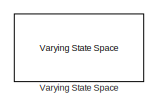
[diagram: root canvas - part 1/3, top center region]
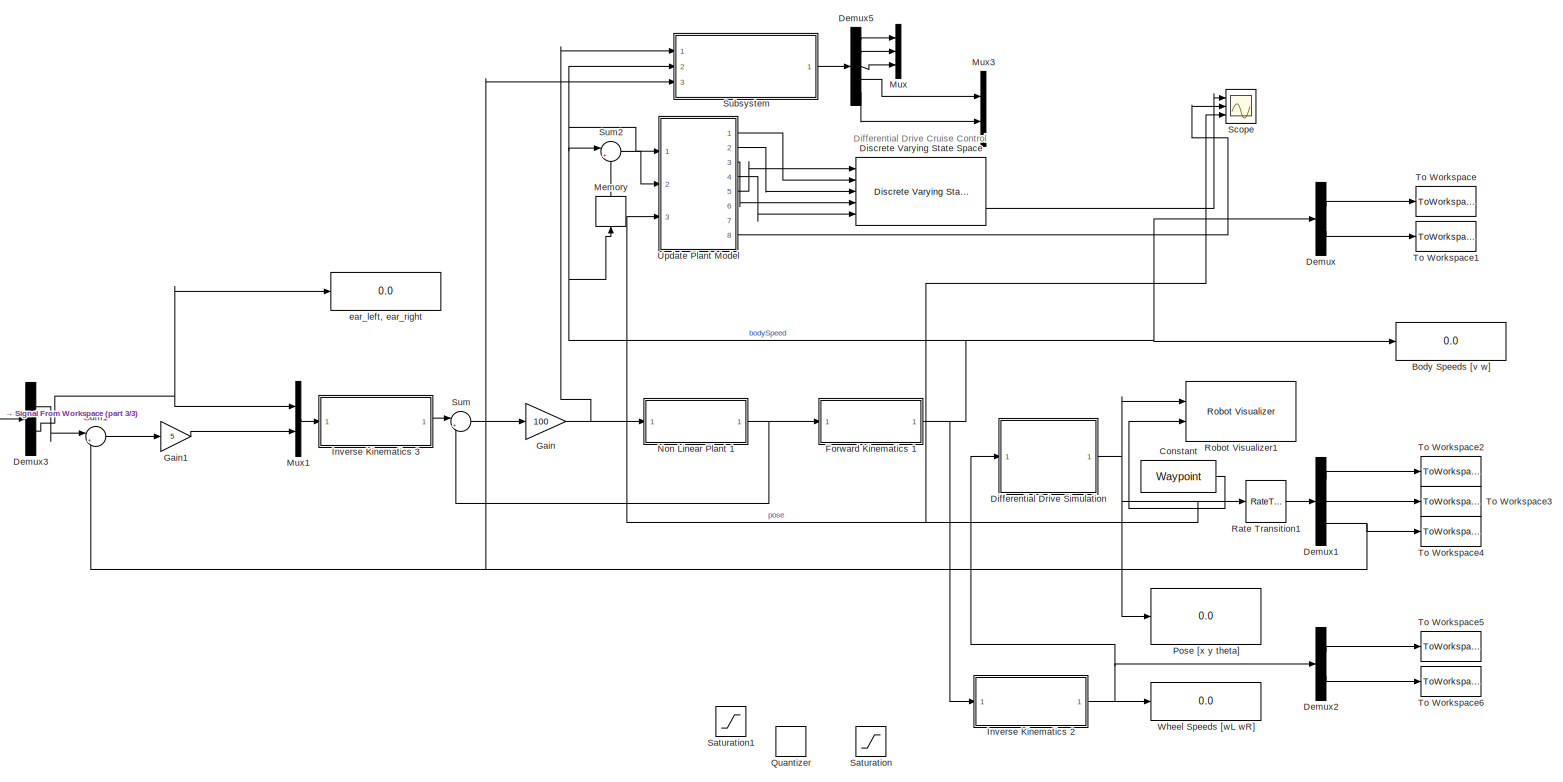
[diagram: root canvas - part 2/3, most of the canvas]
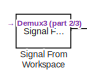
[diagram: root canvas - part 3/3, middle left region]
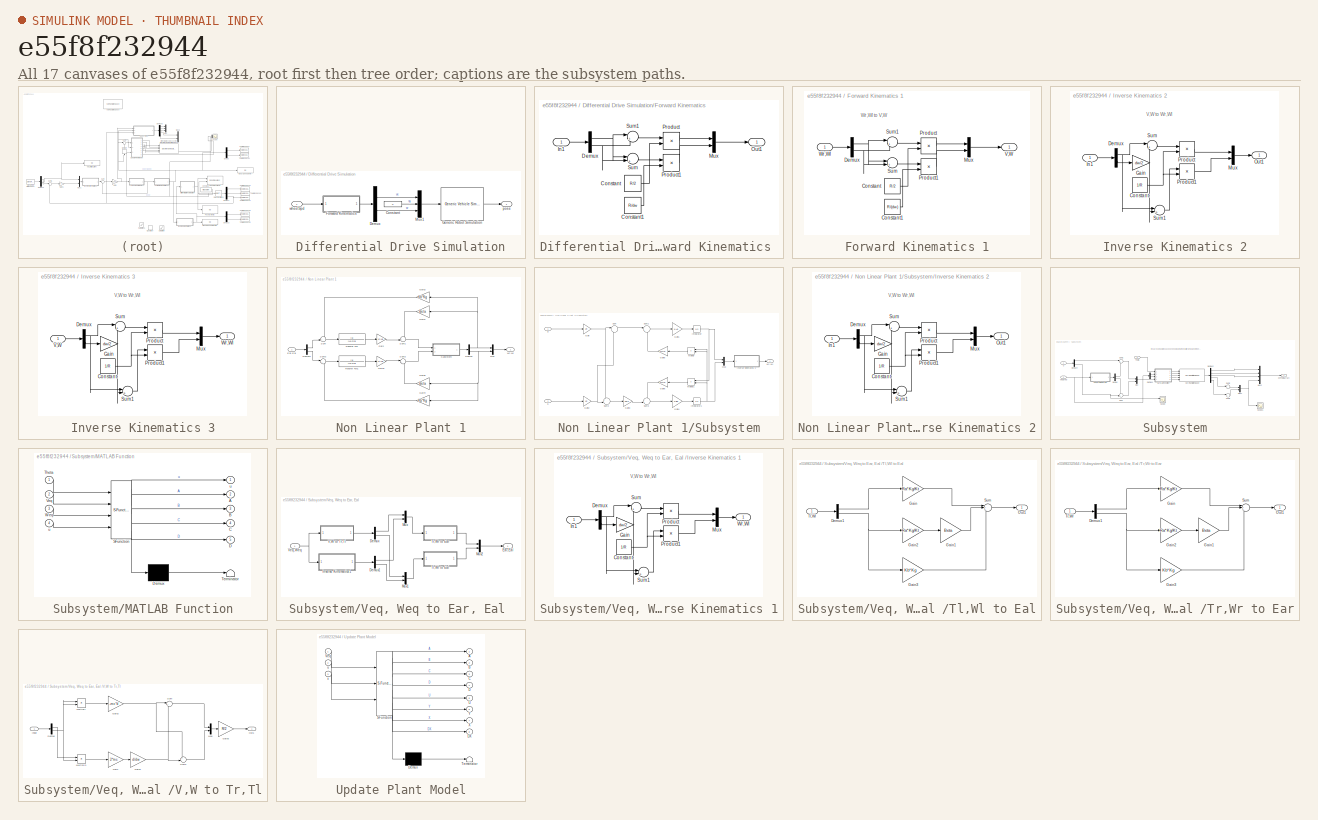
[diagram: thumbnail index - all 17 canvases of the model, root first then tree order]
MODEL slx_e55f8f232944
KIND model
CONFIG AbsTol = auto
CONFIG EnableMultiTasking = off
CONFIG FixedStep = auto
CONFIG MaxStep = auto
CONFIG MinStep = auto
CONFIG RelTol = 1e-3
CONFIG SampleTimeConstraint = Unconstrained
CONFIG Solver = VariableStepAuto
CONFIG SolverName = VariableStepAuto
CONFIG StartTime = 0.0
CONFIG StopTime = inf
BLOCK [Display] Body Speeds [v w]
  Decimation = 1
  Ports = [1]
BLOCK [Constant] Constant
  SampleTime = sampleTime
  Value = Waypoint
BLOCK [Demux] Demux
  DisplayOption = bar
  Outputs = 2
  Ports = [1, 2]
BLOCK [Demux] Demux1
  DisplayOption = bar
  Outputs = 3
  Ports = [1, 3]
BLOCK [Demux] Demux2
  DisplayOption = bar
  Outputs = 2
  Ports = [1, 2]
BLOCK [Demux] Demux3
  DisplayOption = bar
  Outputs = 2
  Ports = [1, 2]
BLOCK [Demux] Demux5
  DisplayOption = bar
  Outputs = 5
  Ports = [1, 5]
BLOCK [SubSystem] Differential Drive Simulation
  AncestorBlock = mobileRoboticsLib/Kinematic Models/Differential Drive/Differential Drive Simulation
  OverrideUsingVariant = mode==2
  Ports = [1, 1]
  RequestExecContextInheritance = off
BLOCK [Constant] Differential Drive Simulation/Constant
  Value = 0
BLOCK [Demux] Differential Drive Simulation/Demux
  DisplayOption = bar
  Outputs = 2
  Ports = [1, 2]
BLOCK [SubSystem] Differential Drive Simulation/Forward Kinematics 
  Ports = [1, 1]
  RequestExecContextInheritance = off
BLOCK [Constant] Differential Drive Simulation/Forward Kinematics /Constant
  Value = R/2
BLOCK [Constant] Differential Drive Simulation/Forward Kinematics /Constant1
  Value = R/dw
BLOCK [Demux] Differential Drive Simulation/Forward Kinematics /Demux
  DisplayOption = bar
  Outputs = 2
  Ports = [1, 2]
BLOCK [Inport] Differential Drive Simulation/Forward Kinematics /In1
  IconDisplay = Port number
BLOCK [Mux] Differential Drive Simulation/Forward Kinematics /Mux
  DisplayOption = bar
  Inputs = 2
  Ports = [2, 1]
BLOCK [Outport] Differential Drive Simulation/Forward Kinematics /Out1
  IconDisplay = Port number
BLOCK [Product] Differential Drive Simulation/Forward Kinematics /Product
  InputSameDT = off
  OutDataTypeStr = Inherit: Inherit via internal rule
  Ports = [2, 1]
  RndMeth = Floor
  SaturateOnIntegerOverflow = off
BLOCK [Product] Differential Drive Simulation/Forward Kinematics /Product1
  InputSameDT = off
  OutDataTypeStr = Inherit: Inherit via internal rule
  Ports = [2, 1]
  RndMeth = Floor
  SaturateOnIntegerOverflow = off
BLOCK [Sum] Differential Drive Simulation/Forward Kinematics /Sum
  IconShape = round
  InputSameDT = off
  Inputs = |+-
  OutDataTypeStr = Inherit: Inherit via internal rule
  Ports = [2, 1]
  SaturateOnIntegerOverflow = off
BLOCK [Sum] Differential Drive Simulation/Forward Kinematics /Sum1
  IconShape = round
  InputSameDT = off
  Inputs = |++
  OutDataTypeStr = Inherit: Inherit via internal rule
  Ports = [2, 1]
  SaturateOnIntegerOverflow = off
BLOCK [Reference] Differential Drive Simulation/Generic Robot Simulation  REF=mobileRoboticsLib/Utilities/Generic Vehicle Simulation
  Ports = [1, 1]
  SourceBlock = mobileRoboticsLib/Utilities/Generic Vehicle Simulation
  SourceProductName = Mobile Robotics Simulation Toolbox
  SourceType = Generic Vehicle Simulation
BLOCK [Mux] Differential Drive Simulation/Mux1
  DisplayOption = bar
  Inputs = 3
  Ports = [3, 1]
BLOCK [Outport] Differential Drive Simulation/pose
  IconDisplay = Port number
BLOCK [Inport] Differential Drive Simulation/wheelSpd
  IconDisplay = Port number
BLOCK [Reference] Discrete Varying State Space  REF=cstblocks/Linear Parameter Varying/Discrete Varying State Space
  Ports = [5, 3]
  SourceBlock = cstblocks/Linear Parameter Varying/Discrete Varying State Space
  SourceProductBaseCode = CT
  SourceProductName = Control System Toolbox
  SourceType = Discrete Varying State Space
BLOCK [SubSystem] Forward Kinematics 1
  Ports = [1, 1]
  RequestExecContextInheritance = off
BLOCK [Constant] Forward Kinematics 1/Constant
  Value = R/2
BLOCK [Constant] Forward Kinematics 1/Constant1
  Value = R/(dw)
BLOCK [Demux] Forward Kinematics 1/Demux
  DisplayOption = bar
  Outputs = 2
  Ports = [1, 2]
BLOCK [Mux] Forward Kinematics 1/Mux
  DisplayOption = bar
  Inputs = 2
  Ports = [2, 1]
BLOCK [Product] Forward Kinematics 1/Product
  InputSameDT = off
  OutDataTypeStr = Inherit: Inherit via internal rule
  Ports = [2, 1]
  RndMeth = Floor
  SaturateOnIntegerOverflow = off
BLOCK [Product] Forward Kinematics 1/Product1
  InputSameDT = off
  OutDataTypeStr = Inherit: Inherit via internal rule
  Ports = [2, 1]
  RndMeth = Floor
  SaturateOnIntegerOverflow = off
BLOCK [Sum] Forward Kinematics 1/Sum
  IconShape = round
  InputSameDT = off
  Inputs = |+-
  OutDataTypeStr = Inherit: Inherit via internal rule
  Ports = [2, 1]
  SaturateOnIntegerOverflow = off
BLOCK [Sum] Forward Kinematics 1/Sum1
  IconShape = round
  InputSameDT = off
  Inputs = |++
  OutDataTypeStr = Inherit: Inherit via internal rule
  Ports = [2, 1]
  SaturateOnIntegerOverflow = off
BLOCK [Outport] Forward Kinematics 1/V,W
  IconDisplay = Port number
BLOCK [Inport] Forward Kinematics 1/Wr,Wl
  IconDisplay = Port number
BLOCK [Gain] Gain
  Gain = 100
  OutDataTypeStr = Inherit: Inherit via internal rule
  ParamDataTypeStr = Inherit: Inherit via internal rule
  SaturateOnIntegerOverflow = off
BLOCK [Gain] Gain1
  Gain = 5
  OutDataTypeStr = Inherit: Inherit via internal rule
  ParamDataTypeStr = Inherit: Inherit via internal rule
  SaturateOnIntegerOverflow = off
BLOCK [SubSystem] Inverse Kinematics 2
  Ports = [1, 1]
  RequestExecContextInheritance = off
BLOCK [Constant] Inverse Kinematics 2/Constant
  Value = 1/R
BLOCK [Demux] Inverse Kinematics 2/Demux
  DisplayOption = bar
  Outputs = 2
  Ports = [1, 2]
BLOCK [Gain] Inverse Kinematics 2/Gain
  Gain = dw/2
  OutDataTypeStr = Inherit: Inherit via internal rule
  ParamDataTypeStr = Inherit: Inherit via internal rule
  SaturateOnIntegerOverflow = off
BLOCK [Inport] Inverse Kinematics 2/In1
  IconDisplay = Port number
BLOCK [Mux] Inverse Kinematics 2/Mux
  DisplayOption = bar
  Inputs = 2
  Ports = [2, 1]
BLOCK [Outport] Inverse Kinematics 2/Out1
  IconDisplay = Port number
BLOCK [Product] Inverse Kinematics 2/Product
  InputSameDT = off
  OutDataTypeStr = Inherit: Inherit via internal rule
  Ports = [2, 1]
  RndMeth = Floor
  SaturateOnIntegerOverflow = off
BLOCK [Product] Inverse Kinematics 2/Product1
  InputSameDT = off
  OutDataTypeStr = Inherit: Inherit via internal rule
  Ports = [2, 1]
  RndMeth = Floor
  SaturateOnIntegerOverflow = off
BLOCK [Sum] Inverse Kinematics 2/Sum
  IconShape = round
  InputSameDT = off
  Inputs = |++
  OutDataTypeStr = Inherit: Inherit via internal rule
  Ports = [2, 1]
  SaturateOnIntegerOverflow = off
BLOCK [Sum] Inverse Kinematics 2/Sum1
  IconShape = round
  InputSameDT = off
  Inputs = |+-
  OutDataTypeStr = Inherit: Inherit via internal rule
  Ports = [2, 1]
  SaturateOnIntegerOverflow = off
BLOCK [SubSystem] Inverse Kinematics 3
  Ports = [1, 1]
  RequestExecContextInheritance = off
BLOCK [Constant] Inverse Kinematics 3/Constant
  Value = 1/R
BLOCK [Demux] Inverse Kinematics 3/Demux
  DisplayOption = bar
  Outputs = 2
  Ports = [1, 2]
BLOCK [Gain] Inverse Kinematics 3/Gain
  Gain = dw/2
  OutDataTypeStr = Inherit: Inherit via internal rule
  ParamDataTypeStr = Inherit: Inherit via internal rule
  SaturateOnIntegerOverflow = off
BLOCK [Mux] Inverse Kinematics 3/Mux
  DisplayOption = bar
  Inputs = 2
  Ports = [2, 1]
BLOCK [Product] Inverse Kinematics 3/Product
  InputSameDT = off
  OutDataTypeStr = Inherit: Inherit via internal rule
  Ports = [2, 1]
  RndMeth = Floor
  SaturateOnIntegerOverflow = off
BLOCK [Product] Inverse Kinematics 3/Product1
  InputSameDT = off
  OutDataTypeStr = Inherit: Inherit via internal rule
  Ports = [2, 1]
  RndMeth = Floor
  SaturateOnIntegerOverflow = off
BLOCK [Sum] Inverse Kinematics 3/Sum
  IconShape = round
  InputSameDT = off
  Inputs = |++
  OutDataTypeStr = Inherit: Inherit via internal rule
  Ports = [2, 1]
  SaturateOnIntegerOverflow = off
BLOCK [Sum] Inverse Kinematics 3/Sum1
  IconShape = round
  InputSameDT = off
  Inputs = |+-
  OutDataTypeStr = Inherit: Inherit via internal rule
  Ports = [2, 1]
  SaturateOnIntegerOverflow = off
BLOCK [Inport] Inverse Kinematics 3/V,W
  IconDisplay = Port number
BLOCK [Outport] Inverse Kinematics 3/Wr,Wl
  IconDisplay = Port number
BLOCK [Memory] Memory
BLOCK [Mux] Mux
  DisplayOption = bar
  Inputs = 3
  Ports = [3, 1]
BLOCK [Mux] Mux1
  DisplayOption = bar
  Inputs = 2
  Ports = [2, 1]
BLOCK [Mux] Mux3
  DisplayOption = bar
  Inputs = 2
  Ports = [2, 1]
BLOCK [SubSystem] Non Linear Plant 1
  Ports = [1, 1]
  RequestExecContextInheritance = off
BLOCK [Demux] Non Linear Plant 1/Demux
  DisplayOption = bar
  Outputs = 2
  Ports = [1, 2]
BLOCK [Demux] Non Linear Plant 1/Demux1
  DisplayOption = bar
  Outputs = 2
  Ports = [1, 2]
BLOCK [Inport] Non Linear Plant 1/Ear,Eal 
  IconDisplay = Port number
BLOCK [Gain] Non Linear Plant 1/Gain
  Gain = Kt/Kg
  OutDataTypeStr = Inherit: Inherit via internal rule
  ParamDataTypeStr = Inherit: Inherit via internal rule
  SaturateOnIntegerOverflow = off
BLOCK [Gain] Non Linear Plant 1/Gain1
  Gain = Beta
  OutDataTypeStr = Inherit: Inherit via internal rule
  ParamDataTypeStr = Inherit: Inherit via internal rule
  SaturateOnIntegerOverflow = off
BLOCK [Gain] Non Linear Plant 1/Gain2
  Gain = Kb*Kg
  OutDataTypeStr = Inherit: Inherit via internal rule
  ParamDataTypeStr = Inherit: Inherit via internal rule
  SaturateOnIntegerOverflow = off
BLOCK [Gain] Non Linear Plant 1/Gain3
  Gain = Kt/Kg
  OutDataTypeStr = Inherit: Inherit via internal rule
  ParamDataTypeStr = Inherit: Inherit via internal rule
  SaturateOnIntegerOverflow = off
BLOCK [Gain] Non Linear Plant 1/Gain4
  Gain = Kb*Kg
  OutDataTypeStr = Inherit: Inherit via internal rule
  ParamDataTypeStr = Inherit: Inherit via internal rule
  SaturateOnIntegerOverflow = off
BLOCK [Gain] Non Linear Plant 1/Gain5
  Gain = Beta
  OutDataTypeStr = Inherit: Inherit via internal rule
  ParamDataTypeStr = Inherit: Inherit via internal rule
  SaturateOnIntegerOverflow = off
BLOCK [Mux] Non Linear Plant 1/Mux
  DisplayOption = bar
  Inputs = 2
  Ports = [2, 1]
BLOCK [SubSystem] Non Linear Plant 1/Subsystem
  Ports = [2, 1]
  RequestExecContextInheritance = off
BLOCK [Gain] Non Linear Plant 1/Subsystem/Gain
  Gain = 1/R
  OutDataTypeStr = Inherit: Inherit via internal rule
  ParamDataTypeStr = Inherit: Inherit via internal rule
  SaturateOnIntegerOverflow = off
BLOCK [Gain] Non Linear Plant 1/Subsystem/Gain1
  Gain = 1/Ad
  OutDataTypeStr = Inherit: Inherit via internal rule
  ParamDataTypeStr = Inherit: Inherit via internal rule
  SaturateOnIntegerOverflow = off
BLOCK [Gain] Non Linear Plant 1/Subsystem/Gain2
  Gain = 1/R
  OutDataTypeStr = Inherit: Inherit via internal rule
  ParamDataTypeStr = Inherit: Inherit via internal rule
  SaturateOnIntegerOverflow = off
BLOCK [Gain] Non Linear Plant 1/Subsystem/Gain3
  Gain = dw/2
  OutDataTypeStr = Inherit: Inherit via internal rule
  ParamDataTypeStr = Inherit: Inherit via internal rule
  SaturateOnIntegerOverflow = off
BLOCK [Gain] Non Linear Plant 1/Subsystem/Gain4
  Gain = 1/Bd
  OutDataTypeStr = Inherit: Inherit via internal rule
  ParamDataTypeStr = Inherit: Inherit via internal rule
  SaturateOnIntegerOverflow = off
BLOCK [Gain] Non Linear Plant 1/Subsystem/Gain5
  Gain = mc*d
  OutDataTypeStr = Inherit: Inherit via internal rule
  ParamDataTypeStr = Inherit: Inherit via internal rule
  SaturateOnIntegerOverflow = off
BLOCK [Gain] Non Linear Plant 1/Subsystem/Gain6
  Gain = mc*d
  OutDataTypeStr = Inherit: Inherit via internal rule
  ParamDataTypeStr = Inherit: Inherit via internal rule
  SaturateOnIntegerOverflow = off
BLOCK [Integrator] Non Linear Plant 1/Subsystem/Integrator
  Ports = [1, 1]
BLOCK [Integrator] Non Linear Plant 1/Subsystem/Integrator1
  Ports = [1, 1]
BLOCK [SubSystem] Non Linear Plant 1/Subsystem/Inverse Kinematics 2
  Ports = [1, 1]
  RequestExecContextInheritance = off
BLOCK [Constant] Non Linear Plant 1/Subsystem/Inverse Kinematics 2/Constant
  Value = 1/R
BLOCK [Demux] Non Linear Plant 1/Subsystem/Inverse Kinematics 2/Demux
  DisplayOption = bar
  Outputs = 2
  Ports = [1, 2]
BLOCK [Gain] Non Linear Plant 1/Subsystem/Inverse Kinematics 2/Gain
  Gain = dw/2
  OutDataTypeStr = Inherit: Inherit via internal rule
  ParamDataTypeStr = Inherit: Inherit via internal rule
  SaturateOnIntegerOverflow = off
BLOCK [Inport] Non Linear Plant 1/Subsystem/Inverse Kinematics 2/In1
  IconDisplay = Port number
BLOCK [Mux] Non Linear Plant 1/Subsystem/Inverse Kinematics 2/Mux
  DisplayOption = bar
  Inputs = 2
  Ports = [2, 1]
BLOCK [Outport] Non Linear Plant 1/Subsystem/Inverse Kinematics 2/Out1
  IconDisplay = Port number
BLOCK [Product] Non Linear Plant 1/Subsystem/Inverse Kinematics 2/Product
  InputSameDT = off
  OutDataTypeStr = Inherit: Inherit via internal rule
  Ports = [2, 1]
  RndMeth = Floor
  SaturateOnIntegerOverflow = off
BLOCK [Product] Non Linear Plant 1/Subsystem/Inverse Kinematics 2/Product1
  InputSameDT = off
  OutDataTypeStr = Inherit: Inherit via internal rule
  Ports = [2, 1]
  RndMeth = Floor
  SaturateOnIntegerOverflow = off
BLOCK [Sum] Non Linear Plant 1/Subsystem/Inverse Kinematics 2/Sum
  IconShape = round
  InputSameDT = off
  Inputs = |++
  OutDataTypeStr = Inherit: Inherit via internal rule
  Ports = [2, 1]
  SaturateOnIntegerOverflow = off
BLOCK [Sum] Non Linear Plant 1/Subsystem/Inverse Kinematics 2/Sum1
  IconShape = round
  InputSameDT = off
  Inputs = |+-
  OutDataTypeStr = Inherit: Inherit via internal rule
  Ports = [2, 1]
  SaturateOnIntegerOverflow = off
BLOCK [Product] Non Linear Plant 1/Subsystem/Multiply
  InputSameDT = off
  OutDataTypeStr = Inherit: Inherit via internal rule
  Ports = [2, 1]
  RndMeth = Floor
  SaturateOnIntegerOverflow = off
BLOCK [Product] Non Linear Plant 1/Subsystem/Multiply1
  InputSameDT = off
  OutDataTypeStr = Inherit: Inherit via internal rule
  Ports = [2, 1]
  RndMeth = Floor
  SaturateOnIntegerOverflow = off
BLOCK [Mux] Non Linear Plant 1/Subsystem/Mux
  DisplayOption = bar
  Inputs = 2
  Ports = [2, 1]
BLOCK [Sum] Non Linear Plant 1/Subsystem/Sum
  IconShape = round
  InputSameDT = off
  Inputs = |++
  OutDataTypeStr = Inherit: Inherit via internal rule
  Ports = [2, 1]
  SaturateOnIntegerOverflow = off
BLOCK [Sum] Non Linear Plant 1/Subsystem/Sum1
  IconShape = round
  InputSameDT = off
  Inputs = |++
  OutDataTypeStr = Inherit: Inherit via internal rule
  Ports = [2, 1]
  SaturateOnIntegerOverflow = off
BLOCK [Sum] Non Linear Plant 1/Subsystem/Sum2
  IconShape = round
  InputSameDT = off
  Inputs = +-|
  OutDataTypeStr = Inherit: Inherit via internal rule
  Ports = [2, 1]
  SaturateOnIntegerOverflow = off
BLOCK [Sum] Non Linear Plant 1/Subsystem/Sum3
  IconShape = round
  InputSameDT = off
  Inputs = -+|
  OutDataTypeStr = Inherit: Inherit via internal rule
  Ports = [2, 1]
  SaturateOnIntegerOverflow = off
BLOCK [Inport] Non Linear Plant 1/Subsystem/Tl
  IconDisplay = Port number
  Port = 2
BLOCK [Inport] Non Linear Plant 1/Subsystem/Tr
  IconDisplay = Port number and signal name
BLOCK [Outport] Non Linear Plant 1/Subsystem/Wr,Wl
  IconDisplay = Port number
BLOCK [Sum] Non Linear Plant 1/Sum
  IconShape = round
  InputSameDT = off
  Inputs = -+|
  OutDataTypeStr = Inherit: Inherit via internal rule
  Ports = [2, 1]
  SaturateOnIntegerOverflow = off
BLOCK [Sum] Non Linear Plant 1/Sum1
  IconShape = round
  InputSameDT = off
  Inputs = -+|
  OutDataTypeStr = Inherit: Inherit via internal rule
  Ports = [2, 1]
  SaturateOnIntegerOverflow = off
BLOCK [Sum] Non Linear Plant 1/Sum2
  IconShape = round
  InputSameDT = off
  Inputs = |+-
  OutDataTypeStr = Inherit: Inherit via internal rule
  Ports = [2, 1]
  SaturateOnIntegerOverflow = off
BLOCK [Sum] Non Linear Plant 1/Sum3
  IconShape = round
  InputSameDT = off
  Inputs = |+-
  OutDataTypeStr = Inherit: Inherit via internal rule
  Ports = [2, 1]
  SaturateOnIntegerOverflow = off
BLOCK [TransferFcn] Non Linear Plant 1/Transfer Fcn
  Denominator = [La Ra]
BLOCK [TransferFcn] Non Linear Plant 1/Transfer Fcn1
  Denominator = [La Ra]
BLOCK [Outport] Non Linear Plant 1/Wr,Wl
  IconDisplay = Port number
BLOCK [Display] Pose [x y theta]
  Decimation = 1
  Ports = [1]
BLOCK [Quantizer] Quantizer
BLOCK [RateTransition] Rate Transition1
  OutPortSampleTime = sampleTime
BLOCK [Reference] Robot Visualizer1  REF=mobileRoboticsLib/Environments/Robot Visualizer
  Ports = [2]
  Priority = 99
  SourceBlock = mobileRoboticsLib/Environments/Robot Visualizer
  SourceProductName = Mobile Robotics Simulation Library
  SourceType = Visualizer2D
BLOCK [Saturate] Saturation
  InputPortMap = u0
  Ports = [1, 1]
BLOCK [Saturate] Saturation1
  InputPortMap = u0
  LowerLimit = 0
  Ports = [1, 1]
  UpperLimit = 12
BLOCK [Scope] Scope
  Floating = off
  NumInputPorts = 3
  Ports = [3]
  ScopeSpecificationString = Simulink.scopes.TimeScopeBlockCfg('CurrentConfiguration', extmgr.ConfigurationSet(extmgr.Configuration('Core','General UI',true),extmgr.Configuration('Core','Source UI',true),extmgr.Configuration('Sources','WiredSimulink',true),extmgr.Configuration('Visuals','Time Domain',true,'SerializedDisplays',{struct('MinYLimReal','-67.80071','MaxYLimReal','577.33234','YLabelReal','','MinYLimMag','0.00000','M...<+1833ch>
BLOCK [Reference] Signal From Workspace  REF=dspsrcs4/Signal From
Workspace
  Ports = [0, 1]
  SourceBlock = dspsrcs4/Signal From\nWorkspace
  SourceProductBaseCode = DS
  SourceProductName = DSP System Toolbox
  SourceType = Signal From Workspace
BLOCK [SubSystem] Subsystem
  Ports = [3, 1]
  RequestExecContextInheritance = off
BLOCK [Demux] Subsystem/Demux
  DisplayOption = bar
  Outputs = 2
  Ports = [1, 2]
BLOCK [Demux] Subsystem/Demux1
  DisplayOption = bar
  Outputs = 2
  Ports = [1, 2]
BLOCK [Demux] Subsystem/Demux2
  DisplayOption = bar
  Outputs = 5
  Ports = [1, 5]
BLOCK [Demux] Subsystem/Demux4
  DisplayOption = bar
  Outputs = 2
  Ports = [1, 2]
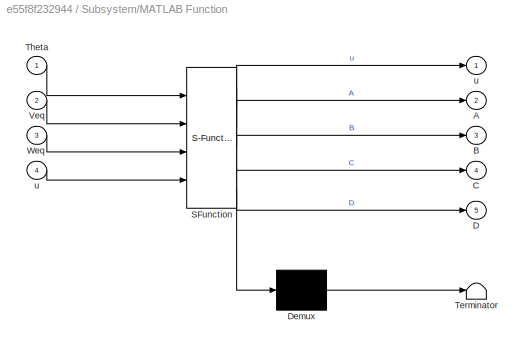
BLOCK [SubSystem] Subsystem/MATLAB Function
  ErrorFcn = Stateflow.Translate.translate
  PermitHierarchicalResolution = ExplicitOnly
  Ports = [4, 5]
  RequestExecContextInheritance = off
  SFBlockType = MATLAB Function
  SystemSampleTime = sampleTime*0.1
  TreatAsAtomicUnit = on
BLOCK [Demux] Subsystem/MATLAB Function/ Demux 
  Outputs = 1
  Ports = [1, 1]
BLOCK [S-Function] Subsystem/MATLAB Function/ SFunction 
  EnableBusSupport = on
  FunctionName = sf_sfun
  Parameters = I,Iw,R,sampleTime
  PortCounts = [4 6]
  Ports = [4, 6]
  SFcnIsStateOwnerBlock = off
  SFunctionDeploymentMode = off
  Tag = Stateflow S-Function Position_augment_Testing 2
BLOCK [Terminator] Subsystem/MATLAB Function/ Terminator 
BLOCK [Outport] Subsystem/MATLAB Function/A
  IconDisplay = Port number
  Port = 2
BLOCK [Outport] Subsystem/MATLAB Function/B
  IconDisplay = Port number
  Port = 3
BLOCK [Outport] Subsystem/MATLAB Function/C
  IconDisplay = Port number
  Port = 4
BLOCK [Outport] Subsystem/MATLAB Function/D
  IconDisplay = Port number
  Port = 5
BLOCK [Inport] Subsystem/MATLAB Function/Theta
  IconDisplay = Port number
BLOCK [Inport] Subsystem/MATLAB Function/Veq
  IconDisplay = Port number
  Port = 2
BLOCK [Inport] Subsystem/MATLAB Function/Weq
  IconDisplay = Port number
  Port = 3
BLOCK [Outport] Subsystem/MATLAB Function/u
  IconDisplay = Port number
BLOCK [Inport] Subsystem/MATLAB Function/u 
  IconDisplay = Port number
  Port = 4
BLOCK [Mux] Subsystem/Mux
  DisplayOption = bar
  Inputs = 2
  Ports = [2, 1]
BLOCK [Mux] Subsystem/Mux1
  DisplayOption = bar
  Inputs = 2
  Ports = [2, 1]
BLOCK [Mux] Subsystem/Mux2
  DisplayOption = bar
  Ports = [4, 1]
BLOCK [Scope] Subsystem/Scope
  Floating = off
  NumInputPorts = 2
  Ports = [2]
  ScopeSpecificationString = Simulink.scopes.TimeScopeBlockCfg('CurrentConfiguration', extmgr.ConfigurationSet(extmgr.Configuration('Core','General UI',true),extmgr.Configuration('Core','Source UI',true),extmgr.Configuration('Sources','WiredSimulink',true,'DataLoggingVariableName','ScopeData1'),extmgr.Configuration('Visuals','Time Domain',true,'SerializedDisplays',{struct('MinYLimReal','-8958.46312','MaxYLimReal','8931.89273'...<+1473ch>
BLOCK [Scope] Subsystem/Scope1
  Floating = off
  NumInputPorts = 1
  Ports = [1]
  ScopeSpecificationString = Simulink.scopes.TimeScopeBlockCfg('CurrentConfiguration', extmgr.ConfigurationSet(extmgr.Configuration('Core','General UI',true),extmgr.Configuration('Core','Source UI',true),extmgr.Configuration('Sources','WiredSimulink',true,'DataLoggingVariableName','ScopeData2','DataLoggingSaveFormat','Array','DataLoggingLimitDataPoints',true,'DataLoggingDecimation','1'),extmgr.Configuration('Visuals','Time Do...<+1674ch>
BLOCK [Sum] Subsystem/Sum
  IconShape = round
  InputSameDT = off
  Inputs = -+|
  OutDataTypeStr = Inherit: Inherit via internal rule
  Ports = [2, 1]
  SaturateOnIntegerOverflow = off
BLOCK [Sum] Subsystem/Sum1
  IconShape = round
  InputSameDT = off
  Inputs = |+-
  OutDataTypeStr = Inherit: Inherit via internal rule
  Ports = [2, 1]
  SaturateOnIntegerOverflow = off
BLOCK [Sum] Subsystem/Sum2
  IconShape = round
  InputSameDT = off
  Inputs = |++
  OutDataTypeStr = Inherit: Inherit via internal rule
  Ports = [2, 1]
  SaturateOnIntegerOverflow = off
BLOCK [Sum] Subsystem/Sum3
  IconShape = round
  InputSameDT = off
  Inputs = |++
  OutDataTypeStr = Inherit: Inherit via internal rule
  Ports = [2, 1]
  SaturateOnIntegerOverflow = off
BLOCK [Inport] Subsystem/Theta 
  IconDisplay = Port number
  Port = 3
BLOCK [Reference] Subsystem/Varying State Space  REF=cstblocks/Linear Parameter Varying/Varying State Space
  Ports = [5, 1]
  SourceBlock = cstblocks/Linear Parameter Varying/Varying State Space
  SourceProductBaseCode = CT
  SourceProductName = Control System Toolbox
  SourceType = Varying State Space
BLOCK [SubSystem] Subsystem/Veq, Weq to Ear, Eal 
  Ports = [1, 1]
  RequestExecContextInheritance = off
BLOCK [Demux] Subsystem/Veq, Weq to Ear, Eal /Demux
  DisplayOption = bar
  Outputs = 2
  Ports = [1, 2]
BLOCK [Demux] Subsystem/Veq, Weq to Ear, Eal /Demux1
  DisplayOption = bar
  Outputs = 2
  Ports = [1, 2]
BLOCK [Outport] Subsystem/Veq, Weq to Ear, Eal /Ear,Eal
  IconDisplay = Port number
BLOCK [SubSystem] Subsystem/Veq, Weq to Ear, Eal /Inverse Kinematics 1
  Ports = [1, 1]
  RequestExecContextInheritance = off
BLOCK [Constant] Subsystem/Veq, Weq to Ear, Eal /Inverse Kinematics 1/Constant
  Value = 1/R
BLOCK [Demux] Subsystem/Veq, Weq to Ear, Eal /Inverse Kinematics 1/Demux
  DisplayOption = bar
  Outputs = 2
  Ports = [1, 2]
BLOCK [Gain] Subsystem/Veq, Weq to Ear, Eal /Inverse Kinematics 1/Gain
  Gain = dw/2
  OutDataTypeStr = Inherit: Inherit via internal rule
  ParamDataTypeStr = Inherit: Inherit via internal rule
  SaturateOnIntegerOverflow = off
BLOCK [Inport] Subsystem/Veq, Weq to Ear, Eal /Inverse Kinematics 1/In1
  IconDisplay = Port number
BLOCK [Mux] Subsystem/Veq, Weq to Ear, Eal /Inverse Kinematics 1/Mux
  DisplayOption = bar
  Inputs = 2
  Ports = [2, 1]
BLOCK [Product] Subsystem/Veq, Weq to Ear, Eal /Inverse Kinematics 1/Product
  InputSameDT = off
  OutDataTypeStr = Inherit: Inherit via internal rule
  Ports = [2, 1]
  RndMeth = Floor
  SaturateOnIntegerOverflow = off
BLOCK [Product] Subsystem/Veq, Weq to Ear, Eal /Inverse Kinematics 1/Product1
  InputSameDT = off
  OutDataTypeStr = Inherit: Inherit via internal rule
  Ports = [2, 1]
  RndMeth = Floor
  SaturateOnIntegerOverflow = off
BLOCK [Sum] Subsystem/Veq, Weq to Ear, Eal /Inverse Kinematics 1/Sum
  IconShape = round
  InputSameDT = off
  Inputs = |++
  OutDataTypeStr = Inherit: Inherit via internal rule
  Ports = [2, 1]
  SaturateOnIntegerOverflow = off
BLOCK [Sum] Subsystem/Veq, Weq to Ear, Eal /Inverse Kinematics 1/Sum1
  IconShape = round
  InputSameDT = off
  Inputs = |+-
  OutDataTypeStr = Inherit: Inherit via internal rule
  Ports = [2, 1]
  SaturateOnIntegerOverflow = off
BLOCK [Outport] Subsystem/Veq, Weq to Ear, Eal /Inverse Kinematics 1/Wr,Wl
  IconDisplay = Port number
BLOCK [Mux] Subsystem/Veq, Weq to Ear, Eal /Mux
  DisplayOption = bar
  Inputs = 2
  Ports = [2, 1]
BLOCK [Mux] Subsystem/Veq, Weq to Ear, Eal /Mux1
  DisplayOption = bar
  Inputs = 2
  Ports = [2, 1]
BLOCK [Mux] Subsystem/Veq, Weq to Ear, Eal /Mux2
  DisplayOption = bar
  Inputs = 2
  Ports = [2, 1]
BLOCK [SubSystem] Subsystem/Veq, Weq to Ear, Eal /Tl,Wl to Eal
  Ports = [1, 1]
  RequestExecContextInheritance = off
BLOCK [Demux] Subsystem/Veq, Weq to Ear, Eal /Tl,Wl to Eal/Demux1
  DisplayOption = bar
  Outputs = 2
  Ports = [1, 2]
BLOCK [Gain] Subsystem/Veq, Weq to Ear, Eal /Tl,Wl to Eal/Gain
  Gain = Ra*Kg/Kt
  OutDataTypeStr = Inherit: Inherit via internal rule
  ParamDataTypeStr = Inherit: Inherit via internal rule
  SaturateOnIntegerOverflow = off
BLOCK [Gain] Subsystem/Veq, Weq to Ear, Eal /Tl,Wl to Eal/Gain1
  Gain = Beta
  OutDataTypeStr = Inherit: Inherit via internal rule
  ParamDataTypeStr = Inherit: Inherit via internal rule
  SaturateOnIntegerOverflow = off
BLOCK [Gain] Subsystem/Veq, Weq to Ear, Eal /Tl,Wl to Eal/Gain2
  Gain = Ra*Kg/Kt
  OutDataTypeStr = Inherit: Inherit via internal rule
  ParamDataTypeStr = Inherit: Inherit via internal rule
  SaturateOnIntegerOverflow = off
BLOCK [Gain] Subsystem/Veq, Weq to Ear, Eal /Tl,Wl to Eal/Gain3
  Gain = Kb*Kg
  OutDataTypeStr = Inherit: Inherit via internal rule
  ParamDataTypeStr = Inherit: Inherit via internal rule
  SaturateOnIntegerOverflow = off
BLOCK [Outport] Subsystem/Veq, Weq to Ear, Eal /Tl,Wl to Eal/Out1
  IconDisplay = Port number
BLOCK [Sum] Subsystem/Veq, Weq to Ear, Eal /Tl,Wl to Eal/Sum
  IconShape = round
  InputSameDT = off
  Inputs = |+++
  OutDataTypeStr = Inherit: Inherit via internal rule
  Ports = [3, 1]
  SaturateOnIntegerOverflow = off
BLOCK [Inport] Subsystem/Veq, Weq to Ear, Eal /Tl,Wl to Eal/Tl,Wl
  IconDisplay = Port number
BLOCK [SubSystem] Subsystem/Veq, Weq to Ear, Eal /Tr,Wr to Ear
  Ports = [1, 1]
  RequestExecContextInheritance = off
BLOCK [Demux] Subsystem/Veq, Weq to Ear, Eal /Tr,Wr to Ear/Demux1
  DisplayOption = bar
  Outputs = 2
  Ports = [1, 2]
BLOCK [Gain] Subsystem/Veq, Weq to Ear, Eal /Tr,Wr to Ear/Gain
  Gain = Ra*Kg/Kt
  OutDataTypeStr = Inherit: Inherit via internal rule
  ParamDataTypeStr = Inherit: Inherit via internal rule
  SaturateOnIntegerOverflow = off
BLOCK [Gain] Subsystem/Veq, Weq to Ear, Eal /Tr,Wr to Ear/Gain1
  Gain = Beta
  OutDataTypeStr = Inherit: Inherit via internal rule
  ParamDataTypeStr = Inherit: Inherit via internal rule
  SaturateOnIntegerOverflow = off
BLOCK [Gain] Subsystem/Veq, Weq to Ear, Eal /Tr,Wr to Ear/Gain2
  Gain = Ra*Kg/Kt
  OutDataTypeStr = Inherit: Inherit via internal rule
  ParamDataTypeStr = Inherit: Inherit via internal rule
  SaturateOnIntegerOverflow = off
BLOCK [Gain] Subsystem/Veq, Weq to Ear, Eal /Tr,Wr to Ear/Gain3
  Gain = Kb*Kg
  OutDataTypeStr = Inherit: Inherit via internal rule
  ParamDataTypeStr = Inherit: Inherit via internal rule
  SaturateOnIntegerOverflow = off
BLOCK [Outport] Subsystem/Veq, Weq to Ear, Eal /Tr,Wr to Ear/Out1
  IconDisplay = Port number
BLOCK [Sum] Subsystem/Veq, Weq to Ear, Eal /Tr,Wr to Ear/Sum
  IconShape = round
  InputSameDT = off
  Inputs = |+++
  OutDataTypeStr = Inherit: Inherit via internal rule
  Ports = [3, 1]
  SaturateOnIntegerOverflow = off
BLOCK [Inport] Subsystem/Veq, Weq to Ear, Eal /Tr,Wr to Ear/Tr,Wr
  IconDisplay = Port number
BLOCK [SubSystem] Subsystem/Veq, Weq to Ear, Eal /V,W to Tr,Tl
  Ports = [1, 1]
  RequestExecContextInheritance = off
BLOCK [Demux] Subsystem/Veq, Weq to Ear, Eal /V,W to Tr,Tl/Demux
  DisplayOption = bar
  Outputs = 2
  Ports = [1, 2]
BLOCK [Gain] Subsystem/Veq, Weq to Ear, Eal /V,W to Tr,Tl/Gain
  Gain = 2*mc
  OutDataTypeStr = Inherit: Inherit via internal rule
  ParamDataTypeStr = Inherit: Inherit via internal rule
  SaturateOnIntegerOverflow = off
BLOCK [Gain] Subsystem/Veq, Weq to Ear, Eal /V,W to Tr,Tl/Gain1
  Gain = d/dw
  OutDataTypeStr = Inherit: Inherit via internal rule
  ParamDataTypeStr = Inherit: Inherit via internal rule
  SaturateOnIntegerOverflow = off
BLOCK [Gain] Subsystem/Veq, Weq to Ear, Eal /V,W to Tr,Tl/Gain2
  Gain = -mc*d
  OutDataTypeStr = Inherit: Inherit via internal rule
  ParamDataTypeStr = Inherit: Inherit via internal rule
  SaturateOnIntegerOverflow = off
BLOCK [Gain] Subsystem/Veq, Weq to Ear, Eal /V,W to Tr,Tl/Gain3
  Gain = R/2
  OutDataTypeStr = Inherit: Inherit via internal rule
  ParamDataTypeStr = Inherit: Inherit via internal rule
  SaturateOnIntegerOverflow = off
BLOCK [Inport] Subsystem/Veq, Weq to Ear, Eal /V,W to Tr,Tl/Input
  IconDisplay = Port number
BLOCK [Product] Subsystem/Veq, Weq to Ear, Eal /V,W to Tr,Tl/Multiply
  InputSameDT = off
  OutDataTypeStr = Inherit: Inherit via internal rule
  Ports = [2, 1]
  RndMeth = Floor
  SaturateOnIntegerOverflow = off
BLOCK [Product] Subsystem/Veq, Weq to Ear, Eal /V,W to Tr,Tl/Multiply1
  InputSameDT = off
  OutDataTypeStr = Inherit: Inherit via internal rule
  Ports = [2, 1]
  RndMeth = Floor
  SaturateOnIntegerOverflow = off
BLOCK [Mux] Subsystem/Veq, Weq to Ear, Eal /V,W to Tr,Tl/Mux
  DisplayOption = bar
  Inputs = 2
  Ports = [2, 1]
BLOCK [Outport] Subsystem/Veq, Weq to Ear, Eal /V,W to Tr,Tl/Out1
  IconDisplay = Port number
BLOCK [Sum] Subsystem/Veq, Weq to Ear, Eal /V,W to Tr,Tl/Sum
  IconShape = round
  InputSameDT = off
  Inputs = |++
  OutDataTypeStr = Inherit: Inherit via internal rule
  Ports = [2, 1]
  SaturateOnIntegerOverflow = off
BLOCK [Sum] Subsystem/Veq, Weq to Ear, Eal /V,W to Tr,Tl/Sum1
  IconShape = round
  InputSameDT = off
  Inputs = +-|
  OutDataTypeStr = Inherit: Inherit via internal rule
  Ports = [2, 1]
  SaturateOnIntegerOverflow = off
BLOCK [Inport] Subsystem/Veq, Weq to Ear, Eal /Veq,Weq
  IconDisplay = Port number
BLOCK [Inport] Subsystem/Veq,Weq 
  IconDisplay = Port number
  Port = 2
BLOCK [Outport] Subsystem/X,Y,Theta,Wr,Wl
  IconDisplay = Port number
BLOCK [Inport] Subsystem/u 
  IconDisplay = Port number
BLOCK [Sum] Sum
  IconShape = round
  InputSameDT = off
  Inputs = |+-
  OutDataTypeStr = Inherit: Inherit via internal rule
  Ports = [2, 1]
  SaturateOnIntegerOverflow = off
BLOCK [Sum] Sum1
  IconShape = round
  InputSameDT = off
  Inputs = |+-
  OutDataTypeStr = Inherit: Inherit via internal rule
  Ports = [2, 1]
  SaturateOnIntegerOverflow = off
BLOCK [Sum] Sum2
  IconShape = round
  InputSameDT = off
  Inputs = |+-
  OutDataTypeStr = Inherit: Inherit via internal rule
  Ports = [2, 1]
  SaturateOnIntegerOverflow = off
BLOCK [ToWorkspace] To Workspace
  FixptAsFi = on
  MaxDataPoints = inf
  Ports = [1]
  SampleTime = -1
  Save2DSignal = 3-D array (concatenate along third dimension)
  VariableName = v
BLOCK [ToWorkspace] To Workspace1
  FixptAsFi = on
  MaxDataPoints = inf
  Ports = [1]
  SampleTime = -1
  Save2DSignal = 3-D array (concatenate along third dimension)
  VariableName = w
BLOCK [ToWorkspace] To Workspace2
  FixptAsFi = on
  MaxDataPoints = inf
  Ports = [1]
  SampleTime = -1
  Save2DSignal = 3-D array (concatenate along third dimension)
  VariableName = X
BLOCK [ToWorkspace] To Workspace3
  FixptAsFi = on
  MaxDataPoints = inf
  Ports = [1]
  SampleTime = -1
  Save2DSignal = 3-D array (concatenate along third dimension)
  VariableName = Y
BLOCK [ToWorkspace] To Workspace4
  FixptAsFi = on
  MaxDataPoints = inf
  Ports = [1]
  SampleTime = -1
  Save2DSignal = 3-D array (concatenate along third dimension)
  VariableName = theta
BLOCK [ToWorkspace] To Workspace5
  FixptAsFi = on
  MaxDataPoints = inf
  Ports = [1]
  SampleTime = -1
  Save2DSignal = 3-D array (concatenate along third dimension)
  VariableName = wL
BLOCK [ToWorkspace] To Workspace6
  FixptAsFi = on
  MaxDataPoints = inf
  Ports = [1]
  SampleTime = -1
  Save2DSignal = 3-D array (concatenate along third dimension)
  VariableName = wR
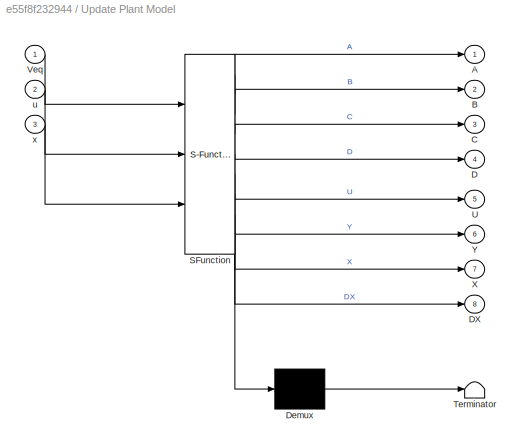
BLOCK [SubSystem] Update Plant Model
  ErrorFcn = Stateflow.Translate.translate
  PermitHierarchicalResolution = ExplicitOnly
  Ports = [3, 8]
  RequestExecContextInheritance = off
  SFBlockType = MATLAB Function
  SystemSampleTime = 0
  TreatAsAtomicUnit = on
BLOCK [Demux] Update Plant Model/ Demux 
  Outputs = 1
  Ports = [1, 1]
BLOCK [S-Function] Update Plant Model/ SFunction 
  EnableBusSupport = on
  FunctionName = sf_sfun
  PortCounts = [3 9]
  Ports = [3, 9]
  SFcnIsStateOwnerBlock = off
  SFunctionDeploymentMode = off
  Tag = Stateflow S-Function Position_augment_Testing 1
BLOCK [Terminator] Update Plant Model/ Terminator 
BLOCK [Outport] Update Plant Model/A
  IconDisplay = Port number
BLOCK [Outport] Update Plant Model/B
  IconDisplay = Port number
  Port = 2
BLOCK [Outport] Update Plant Model/C
  IconDisplay = Port number
  Port = 3
BLOCK [Outport] Update Plant Model/D
  IconDisplay = Port number
  Port = 4
BLOCK [Outport] Update Plant Model/DX
  IconDisplay = Port number
  Port = 8
BLOCK [Outport] Update Plant Model/U
  IconDisplay = Port number
  Port = 5
BLOCK [Inport] Update Plant Model/Veq
  IconDisplay = Port number
BLOCK [Outport] Update Plant Model/X
  IconDisplay = Port number
  Port = 7
BLOCK [Outport] Update Plant Model/Y
  IconDisplay = Port number
  Port = 6
BLOCK [Inport] Update Plant Model/u
  IconDisplay = Port number
  Port = 2
BLOCK [Inport] Update Plant Model/x
  IconDisplay = Port number
  Port = 3
BLOCK [Reference] Varying State Space  REF=cstblocks/Linear Parameter Varying/Varying State Space
  Ports = [5, 3]
  SourceBlock = cstblocks/Linear Parameter Varying/Varying State Space
  SourceProductBaseCode = CT
  SourceProductName = Control System Toolbox
  SourceType = Varying State Space
BLOCK [Display] Wheel Speeds [wL wR]
  Decimation = 1
  Ports = [1]
BLOCK [Display] ear_left, ear_right 
  Decimation = 1
  Ports = [1]
ANNOTATION (root): Differential Drive Cruise Control
ANNOTATION Forward Kinematics 1: Wr,Wl to V,W
ANNOTATION Inverse Kinematics 2: V,W to Wr,Wl
ANNOTATION Inverse Kinematics 3: V,W to Wr,Wl
ANNOTATION Non Linear Plant 1/Subsystem/Inverse Kinematics 2: V,W to Wr,Wl
ANNOTATION Subsystem: If you are using state space, no need of adding the equilibrium values in the end
ANNOTATION Subsystem/Veq, Weq to Ear, Eal /Inverse Kinematics 1: V,W to Wr,Wl
LINE Constant:1 -> Robot Visualizer1:2
LINE Demux1:1 -> To Workspace2:1
LINE Demux1:2 -> To Workspace3:1
NET Demux1:3 -> Subsystem:3, Sum1:2, To Workspace4:1
LINE Demux2:1 -> To Workspace5:1
LINE Demux2:2 -> To Workspace6:1
LINE Demux3:1 -> Sum1:1
NET Demux3:2 -> Mux1:1, ear_left, ear_right :1
LINE Demux5:1 -> Mux:1
LINE Demux5:2 -> Mux:2
LINE Demux5:3 -> Mux:3
LINE Demux5:4 -> Mux3:1
LINE Demux5:5 -> Mux3:2
LINE Demux:1 -> To Workspace:1
LINE Demux:2 -> To Workspace1:1
NET Differential Drive Simulation:1 -> Pose [x y theta]:1, Rate Transition1:1, Robot Visualizer1:1, Scope:3, Update Plant Model:3
LINE Discrete Varying State Space:3 -> Scope:1
LINE Forward Kinematics 1/Constant1:1 -> Forward Kinematics 1/Product1:2
LINE Forward Kinematics 1/Constant:1 -> Forward Kinematics 1/Product:2
NET Forward Kinematics 1/Demux:1 -> Forward Kinematics 1/Sum1:1, Forward Kinematics 1/Sum:1
NET Forward Kinematics 1/Demux:2 -> Forward Kinematics 1/Sum1:2, Forward Kinematics 1/Sum:2
LINE Forward Kinematics 1/Mux:1 -> Forward Kinematics 1/V,W:1
LINE Forward Kinematics 1/Product1:1 -> Forward Kinematics 1/Mux:2
LINE Forward Kinematics 1/Product:1 -> Forward Kinematics 1/Mux:1
LINE Forward Kinematics 1/Sum1:1 -> Forward Kinematics 1/Product:1
LINE Forward Kinematics 1/Sum:1 -> Forward Kinematics 1/Product1:1
LINE Forward Kinematics 1/Wr,Wl:1 -> Forward Kinematics 1/Demux:1
NET Forward Kinematics 1:1 -> Body Speeds [v w]:1, Demux:1, Inverse Kinematics 2:1, Memory:1, Subsystem:2, Sum2:1, Update Plant Model:1
LINE Gain1:1 -> Mux1:2
NET Gain:1 -> Non Linear Plant 1:1, Subsystem:1
NET Inverse Kinematics 2/Constant:1 -> Inverse Kinematics 2/Product1:2, Inverse Kinematics 2/Product:2
NET Inverse Kinematics 2/Demux:1 -> Inverse Kinematics 2/Sum1:1, Inverse Kinematics 2/Sum:1
LINE Inverse Kinematics 2/Demux:2 -> Inverse Kinematics 2/Gain:1
NET Inverse Kinematics 2/Gain:1 -> Inverse Kinematics 2/Sum1:2, Inverse Kinematics 2/Sum:2
LINE Inverse Kinematics 2/In1:1 -> Inverse Kinematics 2/Demux:1
LINE Inverse Kinematics 2/Mux:1 -> Inverse Kinematics 2/Out1:1
LINE Inverse Kinematics 2/Product1:1 -> Inverse Kinematics 2/Mux:2
LINE Inverse Kinematics 2/Product:1 -> Inverse Kinematics 2/Mux:1
LINE Inverse Kinematics 2/Sum1:1 -> Inverse Kinematics 2/Product1:1
LINE Inverse Kinematics 2/Sum:1 -> Inverse Kinematics 2/Product:1
NET Inverse Kinematics 2:1 -> Demux2:1, Differential Drive Simulation:1, Wheel Speeds [wL wR]:1
NET Inverse Kinematics 3/Constant:1 -> Inverse Kinematics 3/Product1:2, Inverse Kinematics 3/Product:2
NET Inverse Kinematics 3/Demux:1 -> Inverse Kinematics 3/Sum1:1, Inverse Kinematics 3/Sum:1
LINE Inverse Kinematics 3/Demux:2 -> Inverse Kinematics 3/Gain:1
NET Inverse Kinematics 3/Gain:1 -> Inverse Kinematics 3/Sum1:2, Inverse Kinematics 3/Sum:2
LINE Inverse Kinematics 3/Mux:1 -> Inverse Kinematics 3/Wr,Wl:1
LINE Inverse Kinematics 3/Product1:1 -> Inverse Kinematics 3/Mux:2
LINE Inverse Kinematics 3/Product:1 -> Inverse Kinematics 3/Mux:1
LINE Inverse Kinematics 3/Sum1:1 -> Inverse Kinematics 3/Product1:1
LINE Inverse Kinematics 3/Sum:1 -> Inverse Kinematics 3/Product:1
LINE Inverse Kinematics 3/V,W:1 -> Inverse Kinematics 3/Demux:1
LINE Inverse Kinematics 3:1 -> Sum:1
LINE Memory:1 -> Sum2:2
LINE Mux1:1 -> Inverse Kinematics 3:1
LINE Non Linear Plant 1/Demux1:1 -> Non Linear Plant 1/Sum:2
LINE Non Linear Plant 1/Demux1:2 -> Non Linear Plant 1/Sum3:1
NET Non Linear Plant 1/Demux:1 -> Non Linear Plant 1/Gain1:1, Non Linear Plant 1/Gain2:1, Non Linear Plant 1/Mux:1
NET Non Linear Plant 1/Demux:2 -> Non Linear Plant 1/Gain4:1, Non Linear Plant 1/Gain5:1, Non Linear Plant 1/Mux:2
LINE Non Linear Plant 1/Ear,Eal :1 -> Non Linear Plant 1/Demux1:1
LINE Non Linear Plant 1/Gain1:1 -> Non Linear Plant 1/Sum1:1
LINE Non Linear Plant 1/Gain2:1 -> Non Linear Plant 1/Sum:1
LINE Non Linear Plant 1/Gain3:1 -> Non Linear Plant 1/Sum2:1
LINE Non Linear Plant 1/Gain4:1 -> Non Linear Plant 1/Sum3:2
LINE Non Linear Plant 1/Gain5:1 -> Non Linear Plant 1/Sum2:2
LINE Non Linear Plant 1/Gain:1 -> Non Linear Plant 1/Sum1:2
LINE Non Linear Plant 1/Mux:1 -> Non Linear Plant 1/Wr,Wl:1
LINE Non Linear Plant 1/Subsystem/Gain1:1 -> Non Linear Plant 1/Subsystem/Integrator:1
NET Non Linear Plant 1/Subsystem/Gain2:1 -> Non Linear Plant 1/Subsystem/Sum2:2, Non Linear Plant 1/Subsystem/Sum:2
LINE Non Linear Plant 1/Subsystem/Gain3:1 -> Non Linear Plant 1/Subsystem/Sum3:2
LINE Non Linear Plant 1/Subsystem/Gain4:1 -> Non Linear Plant 1/Subsystem/Integrator1:1
LINE Non Linear Plant 1/Subsystem/Gain5:1 -> Non Linear Plant 1/Subsystem/Sum1:2
LINE Non Linear Plant 1/Subsystem/Gain6:1 -> Non Linear Plant 1/Subsystem/Sum3:1
NET Non Linear Plant 1/Subsystem/Gain:1 -> Non Linear Plant 1/Subsystem/Sum2:1, Non Linear Plant 1/Subsystem/Sum:1
NET Non Linear Plant 1/Subsystem/Integrator1:1 -> Non Linear Plant 1/Subsystem/Multiply1:2, Non Linear Plant 1/Subsystem/Multiply:1, Non Linear Plant 1/Subsystem/Multiply:2, Non Linear Plant 1/Subsystem/Mux:2
NET Non Linear Plant 1/Subsystem/Integrator:1 -> Non Linear Plant 1/Subsystem/Multiply1:1, Non Linear Plant 1/Subsystem/Mux:1
NET Non Linear Plant 1/Subsystem/Inverse Kinematics 2/Constant:1 -> Non Linear Plant 1/Subsystem/Inverse Kinematics 2/Product1:2, Non Linear Plant 1/Subsystem/Inverse Kinematics 2/Product:2
NET Non Linear Plant 1/Subsystem/Inverse Kinematics 2/Demux:1 -> Non Linear Plant 1/Subsystem/Inverse Kinematics 2/Sum1:1, Non Linear Plant 1/Subsystem/Inverse Kinematics 2/Sum:1
LINE Non Linear Plant 1/Subsystem/Inverse Kinematics 2/Demux:2 -> Non Linear Plant 1/Subsystem/Inverse Kinematics 2/Gain:1
NET Non Linear Plant 1/Subsystem/Inverse Kinematics 2/Gain:1 -> Non Linear Plant 1/Subsystem/Inverse Kinematics 2/Sum1:2, Non Linear Plant 1/Subsystem/Inverse Kinematics 2/Sum:2
LINE Non Linear Plant 1/Subsystem/Inverse Kinematics 2/In1:1 -> Non Linear Plant 1/Subsystem/Inverse Kinematics 2/Demux:1
LINE Non Linear Plant 1/Subsystem/Inverse Kinematics 2/Mux:1 -> Non Linear Plant 1/Subsystem/Inverse Kinematics 2/Out1:1
LINE Non Linear Plant 1/Subsystem/Inverse Kinematics 2/Product1:1 -> Non Linear Plant 1/Subsystem/Inverse Kinematics 2/Mux:2
LINE Non Linear Plant 1/Subsystem/Inverse Kinematics 2/Product:1 -> Non Linear Plant 1/Subsystem/Inverse Kinematics 2/Mux:1
LINE Non Linear Plant 1/Subsystem/Inverse Kinematics 2/Sum1:1 -> Non Linear Plant 1/Subsystem/Inverse Kinematics 2/Product1:1
LINE Non Linear Plant 1/Subsystem/Inverse Kinematics 2/Sum:1 -> Non Linear Plant 1/Subsystem/Inverse Kinematics 2/Product:1
LINE Non Linear Plant 1/Subsystem/Inverse Kinematics 2:1 -> Non Linear Plant 1/Subsystem/Wr,Wl:1
LINE Non Linear Plant 1/Subsystem/Multiply1:1 -> Non Linear Plant 1/Subsystem/Gain6:1
LINE Non Linear Plant 1/Subsystem/Multiply:1 -> Non Linear Plant 1/Subsystem/Gain5:1
LINE Non Linear Plant 1/Subsystem/Mux:1 -> Non Linear Plant 1/Subsystem/Inverse Kinematics 2:1
LINE Non Linear Plant 1/Subsystem/Sum1:1 -> Non Linear Plant 1/Subsystem/Gain1:1
LINE Non Linear Plant 1/Subsystem/Sum2:1 -> Non Linear Plant 1/Subsystem/Gain3:1
LINE Non Linear Plant 1/Subsystem/Sum3:1 -> Non Linear Plant 1/Subsystem/Gain4:1
LINE Non Linear Plant 1/Subsystem/Sum:1 -> Non Linear Plant 1/Subsystem/Sum1:1
LINE Non Linear Plant 1/Subsystem/Tl:1 -> Non Linear Plant 1/Subsystem/Gain2:1
LINE Non Linear Plant 1/Subsystem/Tr:1 -> Non Linear Plant 1/Subsystem/Gain:1
LINE Non Linear Plant 1/Subsystem:1 -> Non Linear Plant 1/Demux:1
LINE Non Linear Plant 1/Sum1:1 -> Non Linear Plant 1/Subsystem:1
LINE Non Linear Plant 1/Sum2:1 -> Non Linear Plant 1/Subsystem:2
LINE Non Linear Plant 1/Sum3:1 -> Non Linear Plant 1/Transfer Fcn1:1
LINE Non Linear Plant 1/Sum:1 -> Non Linear Plant 1/Transfer Fcn:1
LINE Non Linear Plant 1/Transfer Fcn1:1 -> Non Linear Plant 1/Gain3:1
LINE Non Linear Plant 1/Transfer Fcn:1 -> Non Linear Plant 1/Gain:1
NET Non Linear Plant 1:1 -> Forward Kinematics 1:1, Sum:2
LINE Rate Transition1:1 -> Demux1:1
LINE Signal From Workspace:1 -> Demux3:1
LINE Subsystem/Demux1:1 -> Subsystem/MATLAB Function:2
LINE Subsystem/Demux1:2 -> Subsystem/MATLAB Function:3
LINE Subsystem/Demux2:1 -> Subsystem/Mux2:1
LINE Subsystem/Demux2:2 -> Subsystem/Mux2:2
LINE Subsystem/Demux2:3 -> Subsystem/Mux2:3
LINE Subsystem/Demux2:4 -> Subsystem/Sum2:1
LINE Subsystem/Demux2:5 -> Subsystem/Sum3:1
LINE Subsystem/Demux4:1 -> Subsystem/Sum1:1
NET Subsystem/Demux4:2 -> Subsystem/Scope:1, Subsystem/Sum:2
LINE Subsystem/Demux:1 -> Subsystem/Sum1:2
LINE Subsystem/Demux:2 -> Subsystem/Sum:1
LINE Subsystem/MATLAB Function:1 -> Subsystem/Varying State Space:1
LINE Subsystem/MATLAB Function:2 -> Subsystem/Varying State Space:2
LINE Subsystem/MATLAB Function:3 -> Subsystem/Varying State Space:3
LINE Subsystem/MATLAB Function:4 -> Subsystem/Varying State Space:4
LINE Subsystem/MATLAB Function:5 -> Subsystem/Varying State Space:5
NET Subsystem/Mux1:1 -> Subsystem/Mux2:4, Subsystem/Scope1:1
LINE Subsystem/Mux2:1 -> Subsystem/X,Y,Theta,Wr,Wl:1
LINE Subsystem/Mux:1 -> Subsystem/MATLAB Function:4
LINE Subsystem/Sum1:1 -> Subsystem/Mux:1
LINE Subsystem/Sum2:1 -> Subsystem/Mux1:1
LINE Subsystem/Sum3:1 -> Subsystem/Mux1:2
LINE Subsystem/Sum:1 -> Subsystem/Mux:2
LINE Subsystem/Theta :1 -> Subsystem/MATLAB Function:1
LINE Subsystem/Varying State Space:1 -> Subsystem/Demux2:1
LINE Subsystem/Veq, Weq to Ear, Eal /Demux1:1 -> Subsystem/Veq, Weq to Ear, Eal /Mux:2
LINE Subsystem/Veq, Weq to Ear, Eal /Demux1:2 -> Subsystem/Veq, Weq to Ear, Eal /Mux1:2
LINE Subsystem/Veq, Weq to Ear, Eal /Demux:1 -> Subsystem/Veq, Weq to Ear, Eal /Mux:1
LINE Subsystem/Veq, Weq to Ear, Eal /Demux:2 -> Subsystem/Veq, Weq to Ear, Eal /Mux1:1
NET Subsystem/Veq, Weq to Ear, Eal /Inverse Kinematics 1/Constant:1 -> Subsystem/Veq, Weq to Ear, Eal /Inverse Kinematics 1/Product1:2, Subsystem/Veq, Weq to Ear, Eal /Inverse Kinematics 1/Product:2
NET Subsystem/Veq, Weq to Ear, Eal /Inverse Kinematics 1/Demux:1 -> Subsystem/Veq, Weq to Ear, Eal /Inverse Kinematics 1/Sum1:1, Subsystem/Veq, Weq to Ear, Eal /Inverse Kinematics 1/Sum:1
LINE Subsystem/Veq, Weq to Ear, Eal /Inverse Kinematics 1/Demux:2 -> Subsystem/Veq, Weq to Ear, Eal /Inverse Kinematics 1/Gain:1
NET Subsystem/Veq, Weq to Ear, Eal /Inverse Kinematics 1/Gain:1 -> Subsystem/Veq, Weq to Ear, Eal /Inverse Kinematics 1/Sum1:2, Subsystem/Veq, Weq to Ear, Eal /Inverse Kinematics 1/Sum:2
LINE Subsystem/Veq, Weq to Ear, Eal /Inverse Kinematics 1/In1:1 -> Subsystem/Veq, Weq to Ear, Eal /Inverse Kinematics 1/Demux:1
LINE Subsystem/Veq, Weq to Ear, Eal /Inverse Kinematics 1/Mux:1 -> Subsystem/Veq, Weq to Ear, Eal /Inverse Kinematics 1/Wr,Wl:1
LINE Subsystem/Veq, Weq to Ear, Eal /Inverse Kinematics 1/Product1:1 -> Subsystem/Veq, Weq to Ear, Eal /Inverse Kinematics 1/Mux:2
LINE Subsystem/Veq, Weq to Ear, Eal /Inverse Kinematics 1/Product:1 -> Subsystem/Veq, Weq to Ear, Eal /Inverse Kinematics 1/Mux:1
LINE Subsystem/Veq, Weq to Ear, Eal /Inverse Kinematics 1/Sum1:1 -> Subsystem/Veq, Weq to Ear, Eal /Inverse Kinematics 1/Product1:1
LINE Subsystem/Veq, Weq to Ear, Eal /Inverse Kinematics 1/Sum:1 -> Subsystem/Veq, Weq to Ear, Eal /Inverse Kinematics 1/Product:1
LINE Subsystem/Veq, Weq to Ear, Eal /Inverse Kinematics 1:1 -> Subsystem/Veq, Weq to Ear, Eal /Demux1:1
LINE Subsystem/Veq, Weq to Ear, Eal /Mux1:1 -> Subsystem/Veq, Weq to Ear, Eal /Tl,Wl to Eal:1
LINE Subsystem/Veq, Weq to Ear, Eal /Mux2:1 -> Subsystem/Veq, Weq to Ear, Eal /Ear,Eal:1
LINE Subsystem/Veq, Weq to Ear, Eal /Mux:1 -> Subsystem/Veq, Weq to Ear, Eal /Tr,Wr to Ear:1
LINE Subsystem/Veq, Weq to Ear, Eal /Tl,Wl to Eal/Demux1:1 -> Subsystem/Veq, Weq to Ear, Eal /Tl,Wl to Eal/Gain:1
NET Subsystem/Veq, Weq to Ear, Eal /Tl,Wl to Eal/Demux1:2 -> Subsystem/Veq, Weq to Ear, Eal /Tl,Wl to Eal/Gain2:1, Subsystem/Veq, Weq to Ear, Eal /Tl,Wl to Eal/Gain3:1
LINE Subsystem/Veq, Weq to Ear, Eal /Tl,Wl to Eal/Gain1:1 -> Subsystem/Veq, Weq to Ear, Eal /Tl,Wl to Eal/Sum:2
LINE Subsystem/Veq, Weq to Ear, Eal /Tl,Wl to Eal/Gain2:1 -> Subsystem/Veq, Weq to Ear, Eal /Tl,Wl to Eal/Gain1:1
LINE Subsystem/Veq, Weq to Ear, Eal /Tl,Wl to Eal/Gain3:1 -> Subsystem/Veq, Weq to Ear, Eal /Tl,Wl to Eal/Sum:3
LINE Subsystem/Veq, Weq to Ear, Eal /Tl,Wl to Eal/Gain:1 -> Subsystem/Veq, Weq to Ear, Eal /Tl,Wl to Eal/Sum:1
LINE Subsystem/Veq, Weq to Ear, Eal /Tl,Wl to Eal/Sum:1 -> Subsystem/Veq, Weq to Ear, Eal /Tl,Wl to Eal/Out1:1
LINE Subsystem/Veq, Weq to Ear, Eal /Tl,Wl to Eal/Tl,Wl:1 -> Subsystem/Veq, Weq to Ear, Eal /Tl,Wl to Eal/Demux1:1
LINE Subsystem/Veq, Weq to Ear, Eal /Tl,Wl to Eal:1 -> Subsystem/Veq, Weq to Ear, Eal /Mux2:2
LINE Subsystem/Veq, Weq to Ear, Eal /Tr,Wr to Ear/Demux1:1 -> Subsystem/Veq, Weq to Ear, Eal /Tr,Wr to Ear/Gain:1
NET Subsystem/Veq, Weq to Ear, Eal /Tr,Wr to Ear/Demux1:2 -> Subsystem/Veq, Weq to Ear, Eal /Tr,Wr to Ear/Gain2:1, Subsystem/Veq, Weq to Ear, Eal /Tr,Wr to Ear/Gain3:1
LINE Subsystem/Veq, Weq to Ear, Eal /Tr,Wr to Ear/Gain1:1 -> Subsystem/Veq, Weq to Ear, Eal /Tr,Wr to Ear/Sum:2
LINE Subsystem/Veq, Weq to Ear, Eal /Tr,Wr to Ear/Gain2:1 -> Subsystem/Veq, Weq to Ear, Eal /Tr,Wr to Ear/Gain1:1
LINE Subsystem/Veq, Weq to Ear, Eal /Tr,Wr to Ear/Gain3:1 -> Subsystem/Veq, Weq to Ear, Eal /Tr,Wr to Ear/Sum:3
LINE Subsystem/Veq, Weq to Ear, Eal /Tr,Wr to Ear/Gain:1 -> Subsystem/Veq, Weq to Ear, Eal /Tr,Wr to Ear/Sum:1
LINE Subsystem/Veq, Weq to Ear, Eal /Tr,Wr to Ear/Sum:1 -> Subsystem/Veq, Weq to Ear, Eal /Tr,Wr to Ear/Out1:1
LINE Subsystem/Veq, Weq to Ear, Eal /Tr,Wr to Ear/Tr,Wr:1 -> Subsystem/Veq, Weq to Ear, Eal /Tr,Wr to Ear/Demux1:1
LINE Subsystem/Veq, Weq to Ear, Eal /Tr,Wr to Ear:1 -> Subsystem/Veq, Weq to Ear, Eal /Mux2:1
LINE Subsystem/Veq, Weq to Ear, Eal /V,W to Tr,Tl/Demux:1 -> Subsystem/Veq, Weq to Ear, Eal /V,W to Tr,Tl/Multiply1:1
NET Subsystem/Veq, Weq to Ear, Eal /V,W to Tr,Tl/Demux:2 -> Subsystem/Veq, Weq to Ear, Eal /V,W to Tr,Tl/Multiply1:2, Subsystem/Veq, Weq to Ear, Eal /V,W to Tr,Tl/Multiply:1, Subsystem/Veq, Weq to Ear, Eal /V,W to Tr,Tl/Multiply:2
NET Subsystem/Veq, Weq to Ear, Eal /V,W to Tr,Tl/Gain1:1 -> Subsystem/Veq, Weq to Ear, Eal /V,W to Tr,Tl/Sum1:2, Subsystem/Veq, Weq to Ear, Eal /V,W to Tr,Tl/Sum:2
NET Subsystem/Veq, Weq to Ear, Eal /V,W to Tr,Tl/Gain2:1 -> Subsystem/Veq, Weq to Ear, Eal /V,W to Tr,Tl/Sum1:1, Subsystem/Veq, Weq to Ear, Eal /V,W to Tr,Tl/Sum:1
LINE Subsystem/Veq, Weq to Ear, Eal /V,W to Tr,Tl/Gain3:1 -> Subsystem/Veq, Weq to Ear, Eal /V,W to Tr,Tl/Out1:1
LINE Subsystem/Veq, Weq to Ear, Eal /V,W to Tr,Tl/Gain:1 -> Subsystem/Veq, Weq to Ear, Eal /V,W to Tr,Tl/Gain1:1
LINE Subsystem/Veq, Weq to Ear, Eal /V,W to Tr,Tl/Input:1 -> Subsystem/Veq, Weq to Ear, Eal /V,W to Tr,Tl/Demux:1
LINE Subsystem/Veq, Weq to Ear, Eal /V,W to Tr,Tl/Multiply1:1 -> Subsystem/Veq, Weq to Ear, Eal /V,W to Tr,Tl/Gain:1
LINE Subsystem/Veq, Weq to Ear, Eal /V,W to Tr,Tl/Multiply:1 -> Subsystem/Veq, Weq to Ear, Eal /V,W to Tr,Tl/Gain2:1
LINE Subsystem/Veq, Weq to Ear, Eal /V,W to Tr,Tl/Mux:1 -> Subsystem/Veq, Weq to Ear, Eal /V,W to Tr,Tl/Gain3:1
LINE Subsystem/Veq, Weq to Ear, Eal /V,W to Tr,Tl/Sum1:1 -> Subsystem/Veq, Weq to Ear, Eal /V,W to Tr,Tl/Mux:2
LINE Subsystem/Veq, Weq to Ear, Eal /V,W to Tr,Tl/Sum:1 -> Subsystem/Veq, Weq to Ear, Eal /V,W to Tr,Tl/Mux:1
LINE Subsystem/Veq, Weq to Ear, Eal /V,W to Tr,Tl:1 -> Subsystem/Veq, Weq to Ear, Eal /Demux:1
NET Subsystem/Veq, Weq to Ear, Eal /Veq,Weq:1 -> Subsystem/Veq, Weq to Ear, Eal /Inverse Kinematics 1:1, Subsystem/Veq, Weq to Ear, Eal /V,W to Tr,Tl:1
LINE Subsystem/Veq, Weq to Ear, Eal :1 -> Subsystem/Demux:1
NET Subsystem/Veq,Weq :1 -> Subsystem/Demux1:1, Subsystem/Veq, Weq to Ear, Eal :1
LINE Subsystem/u :1 -> Subsystem/Demux4:1
LINE Subsystem:1 -> Demux5:1
LINE Sum1:1 -> Gain1:1
LINE Sum2:1 -> Update Plant Model:2
LINE Sum:1 -> Gain:1
LINE Update Plant Model:1 -> Discrete Varying State Space:2
LINE Update Plant Model:2 -> Discrete Varying State Space:3
LINE Update Plant Model:3 -> Discrete Varying State Space:4
LINE Update Plant Model:4 -> Discrete Varying State Space:5
LINE Update Plant Model:5 -> Discrete Varying State Space:1
LINE Update Plant Model:8 -> Scope:2
note: NET lines group one-source signal fan-out (src -> all destinations, sorted); 1:1 wires keep LINE
CHART Update Plant Model states=1 transitions=1
  STATE_LABEL 'eML_blk_kernel()'
  STATE_LABEL 'SCRIPT:\nfunction [A,B,C,D,U,Y,X,DX] = fcn(Veq,u,x)\n% Sample time\nTs = 0.01;\n\n% Model parameters\nU1eq = Veq(1);\nThetaeq = x(3);\n\n% Continuous-time model\nAc = [0 0 -U1eq*sin(Thetaeq);\n      0 0  U1eq*cos(Thetaeq);\n      0 0  0];\nBc = [cos(Thetaeq) 0;\n      sin(Thetaeq) 0;\n      0            1];   \nCc = [1 0 0; 0 1 0; 0 0 1];\nDc = zeros(3,2);\n\n% Generate discrete-time model\nnx = size(Ac,1);\nnu = size...<+204ch>'
CHART Subsystem/MATLAB Function states=1 transitions=1
  STATE_LABEL 'eML_blk_kernel()'
  STATE_LABEL 'SCRIPT:\nfunction [u,A,B,C,D] = fcn(Theta,Veq,Weq,u,sampleTime,I, Iw,R)\n% Sample time\nTs = sampleTime;\nd = 0.0107; L = 0.28; AR = L/0.25; dw = 0.25; md = 0;\nd = 0; thetaeq = Theta;\n% Model Parameters\nKt = 0.0046; Kg = 50; Kb = Kt; Beta = 2.29e-06; La =1.729e-03; Ra = 5.51;\nm = 3.4; mc = 2.76 + md; I = I ; Iw = Iw; L = L; d = d; dw = dw; \nAo = m + 2*Iw/(R*R); Bo = I + dw*dw*Iw/(2*R*R);\n\n% Continuous...<+1313ch>'
